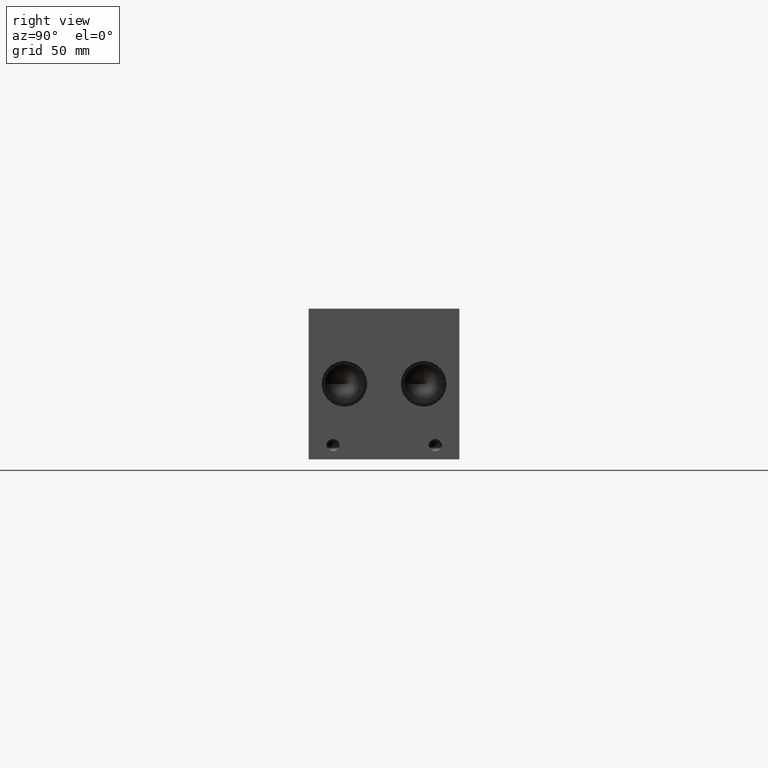
[diagram: clean part render]
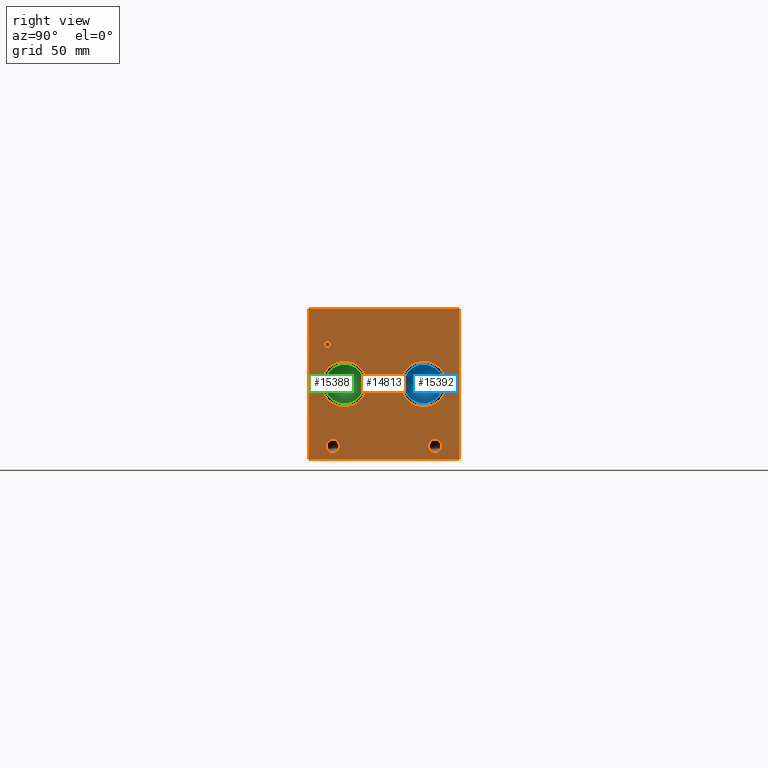
[diagram: same view with three faces highlighted in distinct colors, each labeled with its STEP entity id]
A machine part, right view with three faces highlighted in distinct colors.
Their STEP definitions:

[orange] entity #14813 — the highlighted planar face has unit normal (1, 0, 0).
#171=CIRCLE('',#15623,3.9624);
#172=CIRCLE('',#15624,3.9624);
#173=CIRCLE('',#15625,3.9624);
#174=CIRCLE('',#15626,3.9624);
#175=CIRCLE('',#15627,13.462);
#176=CIRCLE('',#15628,13.462);
#177=CIRCLE('',#15629,13.462);
#178=CIRCLE('',#15630,13.462);
#525=FACE_BOUND('',#2116,.T.);
#526=FACE_BOUND('',#2117,.T.);
#527=FACE_BOUND('',#2118,.T.);
#528=FACE_BOUND('',#2119,.T.);
#529=FACE_BOUND('',#2120,.T.);
#530=FACE_BOUND('',#2121,.T.);
#690=B_SPLINE_CURVE_WITH_KNOTS('',2,(#20015,#20016,#20017,#20018),
 .UNSPECIFIED.,.F.,.F.,(3,1,3),(0.,1.,2.),.UNSPECIFIED.);
#692=B_SPLINE_CURVE_WITH_KNOTS('',2,(#20036,#20037,#20038,#20039),
 .UNSPECIFIED.,.F.,.F.,(3,1,3),(0.,1.,2.),.UNSPECIFIED.);
#694=B_SPLINE_CURVE_WITH_KNOTS('',2,(#20085,#20086,#20087,#20088),
 .UNSPECIFIED.,.F.,.F.,(3,1,3),(0.,1.,2.),.UNSPECIFIED.);
#696=B_SPLINE_CURVE_WITH_KNOTS('',2,(#20103,#20104,#20105,#20106),
 .UNSPECIFIED.,.F.,.F.,(3,1,3),(0.,1.,2.),.UNSPECIFIED.);
#1311=FACE_OUTER_BOUND('',#2115,.T.);
#2115=EDGE_LOOP('',(#9596,#9597,#9598,#9599));
#2116=EDGE_LOOP('',(#9600,#9601,#9602,#9603,#9604,#9605,#9606,#9607));
#2117=EDGE_LOOP('',(#9608,#9609));
#2118=EDGE_LOOP('',(#9610,#9611));
#2119=EDGE_LOOP('',(#9612,#9613));
#2120=EDGE_LOOP('',(#9614,#9615));
#2121=EDGE_LOOP('',(#9616,#9617,#9618,#9619,#9620,#9621,#9622,#9623,#9624));
#3049=LINE('',#19865,#4439);
#3053=LINE('',#19873,#4443);
#3056=LINE('',#19879,#4446);
#3059=LINE('',#19885,#4449);
#3062=LINE('',#19891,#4452);
#3065=LINE('',#19897,#4455);
#3068=LINE('',#19903,#4458);
#3071=LINE('',#19908,#4461);
#3089=LINE('',#20048,#4479);
#3092=LINE('',#20054,#4482);
#3095=LINE('',#20060,#4485);
#3098=LINE('',#20066,#4488);
#3101=LINE('',#20072,#4491);
#3105=LINE('',#20115,#4495);
#3106=LINE('',#20117,#4496);
#3107=LINE('',#20119,#4497);
#3108=LINE('',#20120,#4498);
#4439=VECTOR('',#16563,10.);
#4443=VECTOR('',#16569,10.);
#4446=VECTOR('',#16574,10.);
#4449=VECTOR('',#16579,10.);
#4452=VECTOR('',#16584,10.);
#4455=VECTOR('',#16589,10.);
#4458=VECTOR('',#16594,10.);
#4461=VECTOR('',#16599,10.);
#4479=VECTOR('',#16627,10.);
#4482=VECTOR('',#16632,10.);
#4485=VECTOR('',#16637,10.);
#4488=VECTOR('',#16642,10.);
#4491=VECTOR('',#16647,10.);
#4495=VECTOR('',#16655,10.);
#4496=VECTOR('',#16656,10.);
#4497=VECTOR('',#16657,10.);
#4498=VECTOR('',#16658,10.);
#5829=VERTEX_POINT('',#19863);
#5830=VERTEX_POINT('',#19864);
#5833=VERTEX_POINT('',#19872);
#5835=VERTEX_POINT('',#19878);
#5837=VERTEX_POINT('',#19884);
#5839=VERTEX_POINT('',#19890);
#5841=VERTEX_POINT('',#19896);
#5843=VERTEX_POINT('',#19902);
#5859=VERTEX_POINT('',#20013);
#5860=VERTEX_POINT('',#20014);
#5863=VERTEX_POINT('',#20035);
#5865=VERTEX_POINT('',#20047);
#5867=VERTEX_POINT('',#20053);
#5869=VERTEX_POINT('',#20059);
#5871=VERTEX_POINT('',#20065);
#5873=VERTEX_POINT('',#20071);
#5875=VERTEX_POINT('',#20084);
#5877=VERTEX_POINT('',#20113);
#5878=VERTEX_POINT('',#20114);
#5879=VERTEX_POINT('',#20116);
#5880=VERTEX_POINT('',#20118);
#5881=VERTEX_POINT('',#20121);
#5882=VERTEX_POINT('',#20122);
#5883=VERTEX_POINT('',#20125);
#5884=VERTEX_POINT('',#20126);
#5885=VERTEX_POINT('',#20129);
#5886=VERTEX_POINT('',#20130);
#5887=VERTEX_POINT('',#20133);
#5888=VERTEX_POINT('',#20134);
#7331=EDGE_CURVE('',#5829,#5830,#3049,.T.);
#7335=EDGE_CURVE('',#5833,#5829,#3053,.T.);
#7338=EDGE_CURVE('',#5835,#5833,#3056,.T.);
#7341=EDGE_CURVE('',#5837,#5835,#3059,.T.);
#7344=EDGE_CURVE('',#5839,#5837,#3062,.T.);
#7347=EDGE_CURVE('',#5841,#5839,#3065,.T.);
#7350=EDGE_CURVE('',#5843,#5841,#3068,.T.);
#7353=EDGE_CURVE('',#5830,#5843,#3071,.T.);
#7376=EDGE_CURVE('',#5859,#5860,#690,.T.);
#7380=EDGE_CURVE('',#5863,#5859,#692,.T.);
#7383=EDGE_CURVE('',#5865,#5863,#3089,.T.);
#7386=EDGE_CURVE('',#5867,#5865,#3092,.T.);
#7389=EDGE_CURVE('',#5869,#5867,#3095,.T.);
#7392=EDGE_CURVE('',#5871,#5869,#3098,.T.);
#7395=EDGE_CURVE('',#5873,#5871,#3101,.T.);
#7398=EDGE_CURVE('',#5875,#5873,#694,.T.);
#7401=EDGE_CURVE('',#5860,#5875,#696,.T.);
#7403=EDGE_CURVE('',#5877,#5878,#3105,.T.);
#7404=EDGE_CURVE('',#5878,#5879,#3106,.T.);
#7405=EDGE_CURVE('',#5880,#5879,#3107,.T.);
#7406=EDGE_CURVE('',#5877,#5880,#3108,.T.);
#7407=EDGE_CURVE('',#5881,#5882,#171,.T.);
#7408=EDGE_CURVE('',#5882,#5881,#172,.T.);
#7409=EDGE_CURVE('',#5883,#5884,#173,.T.);
#7410=EDGE_CURVE('',#5884,#5883,#174,.T.);
#7411=EDGE_CURVE('',#5885,#5886,#175,.T.);
#7412=EDGE_CURVE('',#5886,#5885,#176,.T.);
#7413=EDGE_CURVE('',#5887,#5888,#177,.T.);
#7414=EDGE_CURVE('',#5888,#5887,#178,.T.);
#9596=ORIENTED_EDGE('',*,*,#7403,.T.);
#9597=ORIENTED_EDGE('',*,*,#7404,.T.);
#9598=ORIENTED_EDGE('',*,*,#7405,.F.);
#9599=ORIENTED_EDGE('',*,*,#7406,.F.);
#9600=ORIENTED_EDGE('',*,*,#7331,.T.);
#9601=ORIENTED_EDGE('',*,*,#7353,.T.);
#9602=ORIENTED_EDGE('',*,*,#7350,.T.);
#9603=ORIENTED_EDGE('',*,*,#7347,.T.);
#9604=ORIENTED_EDGE('',*,*,#7344,.T.);
#9605=ORIENTED_EDGE('',*,*,#7341,.T.);
#9606=ORIENTED_EDGE('',*,*,#7338,.T.);
#9607=ORIENTED_EDGE('',*,*,#7335,.T.);
#9608=ORIENTED_EDGE('',*,*,#7407,.T.);
#9609=ORIENTED_EDGE('',*,*,#7408,.T.);
#9610=ORIENTED_EDGE('',*,*,#7409,.T.);
#9611=ORIENTED_EDGE('',*,*,#7410,.T.);
#9612=ORIENTED_EDGE('',*,*,#7411,.T.);
#9613=ORIENTED_EDGE('',*,*,#7412,.T.);
#9614=ORIENTED_EDGE('',*,*,#7413,.T.);
#9615=ORIENTED_EDGE('',*,*,#7414,.T.);
#9616=ORIENTED_EDGE('',*,*,#7376,.T.);
#9617=ORIENTED_EDGE('',*,*,#7401,.T.);
#9618=ORIENTED_EDGE('',*,*,#7398,.T.);
#9619=ORIENTED_EDGE('',*,*,#7395,.T.);
#9620=ORIENTED_EDGE('',*,*,#7392,.T.);
#9621=ORIENTED_EDGE('',*,*,#7389,.T.);
#9622=ORIENTED_EDGE('',*,*,#7386,.T.);
#9623=ORIENTED_EDGE('',*,*,#7383,.T.);
#9624=ORIENTED_EDGE('',*,*,#7380,.T.);
#13784=PLANE('',#15622);
#14813=ADVANCED_FACE('',(#1311,#525,#526,#527,#528,#529,#530),#13784,.T.);
#15622=AXIS2_PLACEMENT_3D('',#20112,#16653,#16654);
#15623=AXIS2_PLACEMENT_3D('',#20123,#16659,#16660);
#15624=AXIS2_PLACEMENT_3D('',#20124,#16661,#16662);
#15625=AXIS2_PLACEMENT_3D('',#20127,#16663,#16664);
#15626=AXIS2_PLACEMENT_3D('',#20128,#16665,#16666);
#15627=AXIS2_PLACEMENT_3D('',#20131,#16667,#16668);
#15628=AXIS2_PLACEMENT_3D('',#20132,#16669,#16670);
#15629=AXIS2_PLACEMENT_3D('',#20135,#16671,#16672);
#15630=AXIS2_PLACEMENT_3D('',#20136,#16673,#16674);
#16563=DIRECTION('',(0.,-1.,0.));
#16569=DIRECTION('',(0.,0.,-1.));
#16574=DIRECTION('',(0.,-1.,0.));
#16579=DIRECTION('',(0.,0.,-1.));
#16584=DIRECTION('',(0.,1.,0.));
#16589=DIRECTION('',(0.,0.,1.));
#16594=DIRECTION('',(0.,-1.,0.));
#16599=DIRECTION('',(0.,0.,1.));
#16627=DIRECTION('',(0.,1.,0.));
#16632=DIRECTION('',(0.,0.,1.));
#16637=DIRECTION('',(0.,-1.,0.));
#16642=DIRECTION('',(0.,0.,-1.));
#16647=DIRECTION('',(0.,-1.,0.));
#16653=DIRECTION('center_axis',(1.,0.,0.));
#16654=DIRECTION('ref_axis',(0.,1.,0.));
#16655=DIRECTION('',(0.,1.,0.));
#16656=DIRECTION('',(0.,0.,1.));
#16657=DIRECTION('',(0.,1.,0.));
#16658=DIRECTION('',(0.,0.,1.));
#16659=DIRECTION('center_axis',(-1.,0.,0.));
#16660=DIRECTION('ref_axis',(0.,1.,0.));
#16661=DIRECTION('center_axis',(-1.,0.,0.));
#16662=DIRECTION('ref_axis',(0.,1.,0.));
#16663=DIRECTION('center_axis',(-1.,0.,0.));
#16664=DIRECTION('ref_axis',(0.,1.,0.));
#16665=DIRECTION('center_axis',(-1.,0.,0.));
#16666=DIRECTION('ref_axis',(0.,1.,0.));
#16667=DIRECTION('center_axis',(-1.,0.,0.));
#16668=DIRECTION('ref_axis',(0.,1.,0.));
#16669=DIRECTION('center_axis',(-1.,0.,0.));
#16670=DIRECTION('ref_axis',(0.,1.,0.));
#16671=DIRECTION('center_axis',(-1.,0.,0.));
#16672=DIRECTION('ref_axis',(0.,1.,0.));
#16673=DIRECTION('center_axis',(-1.,0.,0.));
#16674=DIRECTION('ref_axis',(0.,1.,0.));
#19863=CARTESIAN_POINT('',(412.75,77.137165271453,63.5));
#19864=CARTESIAN_POINT('',(412.75,76.2932430799135,63.5));
#19865=CARTESIAN_POINT('',(412.75,38.5685826357265,63.5));
#19872=CARTESIAN_POINT('',(412.75,77.137165271453,69.0987033194816));
#19873=CARTESIAN_POINT('',(412.75,77.137165271453,34.5493516597408));
#19878=CARTESIAN_POINT('',(412.75,79.2675542183881,69.0987033194816));
#19879=CARTESIAN_POINT('',(412.75,39.633777109194,69.0987033194816));
#19884=CARTESIAN_POINT('',(412.75,79.2675542183881,69.8499999046326));
#19885=CARTESIAN_POINT('',(412.75,79.2675542183881,34.9249999523163));
#19890=CARTESIAN_POINT('',(412.75,74.1628541329784,69.8499999046326));
#19891=CARTESIAN_POINT('',(412.75,37.0814270664892,69.8499999046326));
#19896=CARTESIAN_POINT('',(412.75,74.1628541329784,69.0987033194816));
#19897=CARTESIAN_POINT('',(412.75,74.1628541329784,34.5493516597408));
#19902=CARTESIAN_POINT('',(412.75,76.2932430799135,69.0987033194816));
#19903=CARTESIAN_POINT('',(412.75,38.1466215399568,69.0987033194816));
#19908=CARTESIAN_POINT('',(412.75,76.2932430799135,31.75));
#20013=CARTESIAN_POINT('',(412.75,12.2825672023594,69.4537681439707));
#20014=CARTESIAN_POINT('',(412.75,13.039009654532,67.935737372604));
#20015=CARTESIAN_POINT('Ctrl Pts',(412.75,12.2825672023594,69.4537681439707));
#20016=CARTESIAN_POINT('Ctrl Pts',(412.75,12.6376320268486,69.2119123939564));
#20017=CARTESIAN_POINT('Ctrl Pts',(412.75,13.039009654532,68.4657616758269));
#20018=CARTESIAN_POINT('Ctrl Pts',(412.75,13.039009654532,67.935737372604));
#20035=CARTESIAN_POINT('',(412.75,10.6204521543883,69.8499999046326));
#20036=CARTESIAN_POINT('Ctrl Pts',(412.75,10.6204521543883,69.8499999046326));
#20037=CARTESIAN_POINT('Ctrl Pts',(412.75,11.1864975267624,69.8499999046326));
#20038=CARTESIAN_POINT('Ctrl Pts',(412.75,11.978961048086,69.6647486918556));
#20039=CARTESIAN_POINT('Ctrl Pts',(412.75,12.2825672023594,69.4537681439707));
#20047=CARTESIAN_POINT('',(412.75,9.02523337769779,69.8499999046326));
#20048=CARTESIAN_POINT('',(412.75,4.51261668884889,69.8499999046326));
#20053=CARTESIAN_POINT('',(412.75,9.02523337769779,63.5));
#20054=CARTESIAN_POINT('',(412.75,9.02523337769779,31.75));
#20059=CARTESIAN_POINT('',(412.75,9.86915556923729,63.5));
#20060=CARTESIAN_POINT('',(412.75,4.93457778461864,63.5));
#20065=CARTESIAN_POINT('',(412.75,9.86915556923729,65.8670988299279));
#20066=CARTESIAN_POINT('',(412.75,9.86915556923729,32.9335494149639));
#20071=CARTESIAN_POINT('',(412.75,10.5844310852372,65.8670988299279));
#20072=CARTESIAN_POINT('',(412.75,5.29221554261861,65.8670988299279));
#20084=CARTESIAN_POINT('',(412.75,12.4832560162011,66.5257698086904));
#20085=CARTESIAN_POINT('Ctrl Pts',(412.75,12.4832560162011,66.5257698086904));
#20086=CARTESIAN_POINT('Ctrl Pts',(412.75,12.1539205268198,66.2015801863307));
#20087=CARTESIAN_POINT('Ctrl Pts',(412.75,11.2636855320861,65.8670988299279));
#20088=CARTESIAN_POINT('Ctrl Pts',(412.75,10.5844310852372,65.8670988299279));
#20103=CARTESIAN_POINT('Ctrl Pts',(412.75,13.039009654532,67.935737372604));
#20104=CARTESIAN_POINT('Ctrl Pts',(412.75,13.039009654532,67.5240680108774));
#20105=CARTESIAN_POINT('Ctrl Pts',(412.75,12.7456952343018,66.7830631597695));
#20106=CARTESIAN_POINT('Ctrl Pts',(412.75,12.4832560162011,66.5257698086904));
#20112=CARTESIAN_POINT('Origin',(412.75,0.,0.));
#20113=CARTESIAN_POINT('',(412.75,0.,0.));
#20114=CARTESIAN_POINT('',(412.75,88.9,0.));
#20115=CARTESIAN_POINT('',(412.75,0.,0.));
#20116=CARTESIAN_POINT('',(412.75,88.9,88.9));
#20117=CARTESIAN_POINT('',(412.75,88.9,0.));
#20118=CARTESIAN_POINT('',(412.75,0.,88.9));
#20119=CARTESIAN_POINT('',(412.75,0.,88.9));
#20120=CARTESIAN_POINT('',(412.75,0.,0.));
#20121=CARTESIAN_POINT('',(412.75,78.5876,7.9248));
#20122=CARTESIAN_POINT('',(412.75,70.6628,7.9248));
#20123=CARTESIAN_POINT('Origin',(412.75,74.6252,7.9248));
#20124=CARTESIAN_POINT('Origin',(412.75,74.6252,7.9248));
#20125=CARTESIAN_POINT('',(412.75,18.2372,7.9248));
#20126=CARTESIAN_POINT('',(412.75,10.3124,7.9248));
#20127=CARTESIAN_POINT('Origin',(412.75,14.2748,7.9248));
#20128=CARTESIAN_POINT('Origin',(412.75,14.2748,7.9248));
#20129=CARTESIAN_POINT('',(412.75,81.28,44.45));
#20130=CARTESIAN_POINT('',(412.75,54.356,44.45));
#20131=CARTESIAN_POINT('Origin',(412.75,67.818,44.45));
#20132=CARTESIAN_POINT('Origin',(412.75,67.818,44.45));
#20133=CARTESIAN_POINT('',(412.75,34.544,44.45));
#20134=CARTESIAN_POINT('',(412.75,7.62,44.45));
#20135=CARTESIAN_POINT('Origin',(412.75,21.082,44.45));
#20136=CARTESIAN_POINT('Origin',(412.75,21.082,44.45));

[blue] entity #15392 — the highlighted conical surface has half-angle 60 deg.
#113=CONICAL_SURFACE('',#16051,5.7531,1.0471975511966);
#214=CIRCLE('',#16052,11.5062);
#215=CIRCLE('',#16053,11.5062);
#1890=FACE_OUTER_BOUND('',#2773,.T.);
#2773=EDGE_LOOP('',(#12773,#12774,#12775,#12776));
#4283=LINE('',#25898,#5673);
#5673=VECTOR('',#18693,5.7531);
#6963=VERTEX_POINT('',#25894);
#6964=VERTEX_POINT('',#25895);
#6965=VERTEX_POINT('',#25897);
#9010=EDGE_CURVE('',#6963,#6964,#214,.T.);
#9011=EDGE_CURVE('',#6964,#6965,#4283,.T.);
#9012=EDGE_CURVE('',#6964,#6963,#215,.T.);
#12773=ORIENTED_EDGE('',*,*,#9010,.T.);
#12774=ORIENTED_EDGE('',*,*,#9011,.T.);
#12775=ORIENTED_EDGE('',*,*,#9011,.F.);
#12776=ORIENTED_EDGE('',*,*,#9012,.T.);
#15392=ADVANCED_FACE('',(#1890),#113,.F.);
#16051=AXIS2_PLACEMENT_3D('',#25893,#18689,#18690);
#16052=AXIS2_PLACEMENT_3D('',#25896,#18691,#18692);
#16053=AXIS2_PLACEMENT_3D('',#25899,#18694,#18695);
#18689=DIRECTION('center_axis',(1.,0.,0.));
#18690=DIRECTION('ref_axis',(0.,1.,0.));
#18691=DIRECTION('center_axis',(1.,0.,0.));
#18692=DIRECTION('ref_axis',(0.,1.,0.));
#18693=DIRECTION('',(-0.5,0.866025403784439,1.06057523872491E-16));
#18694=DIRECTION('center_axis',(1.,0.,0.));
#18695=DIRECTION('ref_axis',(0.,1.,0.));
#25893=CARTESIAN_POINT('Origin',(392.914536166325,67.818,44.45));
#25894=CARTESIAN_POINT('',(396.23609,79.3242,44.45));
#25895=CARTESIAN_POINT('',(396.23609,56.3118,44.45));
#25896=CARTESIAN_POINT('Origin',(396.23609,67.818,44.45));
#25897=CARTESIAN_POINT('',(389.59298233265,67.818,44.45));
#25898=CARTESIAN_POINT('',(392.914536166325,62.0649,44.45));
#25899=CARTESIAN_POINT('Origin',(396.23609,67.818,44.45));

[green] entity #15388 — the highlighted conical surface has half-angle 60 deg.
#112=CONICAL_SURFACE('',#16042,5.7531,1.0471975511966);
#209=CIRCLE('',#16043,11.5062);
#210=CIRCLE('',#16044,11.5062);
#1886=FACE_OUTER_BOUND('',#2768,.T.);
#2768=EDGE_LOOP('',(#12755,#12756,#12757,#12758));
#4280=LINE('',#25880,#5670);
#5670=VECTOR('',#18672,5.7531);
#6957=VERTEX_POINT('',#25876);
#6958=VERTEX_POINT('',#25877);
#6959=VERTEX_POINT('',#25879);
#9002=EDGE_CURVE('',#6957,#6958,#209,.T.);
#9003=EDGE_CURVE('',#6958,#6959,#4280,.T.);
#9004=EDGE_CURVE('',#6958,#6957,#210,.T.);
#12755=ORIENTED_EDGE('',*,*,#9002,.T.);
#12756=ORIENTED_EDGE('',*,*,#9003,.T.);
#12757=ORIENTED_EDGE('',*,*,#9003,.F.);
#12758=ORIENTED_EDGE('',*,*,#9004,.T.);
#15388=ADVANCED_FACE('',(#1886),#112,.F.);
#16042=AXIS2_PLACEMENT_3D('',#25875,#18668,#18669);
#16043=AXIS2_PLACEMENT_3D('',#25878,#18670,#18671);
#16044=AXIS2_PLACEMENT_3D('',#25881,#18673,#18674);
#18668=DIRECTION('center_axis',(1.,0.,0.));
#18669=DIRECTION('ref_axis',(0.,1.,0.));
#18670=DIRECTION('center_axis',(1.,0.,0.));
#18671=DIRECTION('ref_axis',(0.,1.,0.));
#18672=DIRECTION('',(-0.5,0.866025403784439,1.06057523872491E-16));
#18673=DIRECTION('center_axis',(1.,0.,0.));
#18674=DIRECTION('ref_axis',(0.,1.,0.));
#25875=CARTESIAN_POINT('Origin',(392.914536166325,21.082,44.45));
#25876=CARTESIAN_POINT('',(396.23609,32.5882,44.45));
#25877=CARTESIAN_POINT('',(396.23609,9.57579999999999,44.45));
#25878=CARTESIAN_POINT('Origin',(396.23609,21.082,44.45));
#25879=CARTESIAN_POINT('',(389.59298233265,21.082,44.45));
#25880=CARTESIAN_POINT('',(392.914536166325,15.3289,44.45));
#25881=CARTESIAN_POINT('Origin',(396.23609,21.082,44.45));